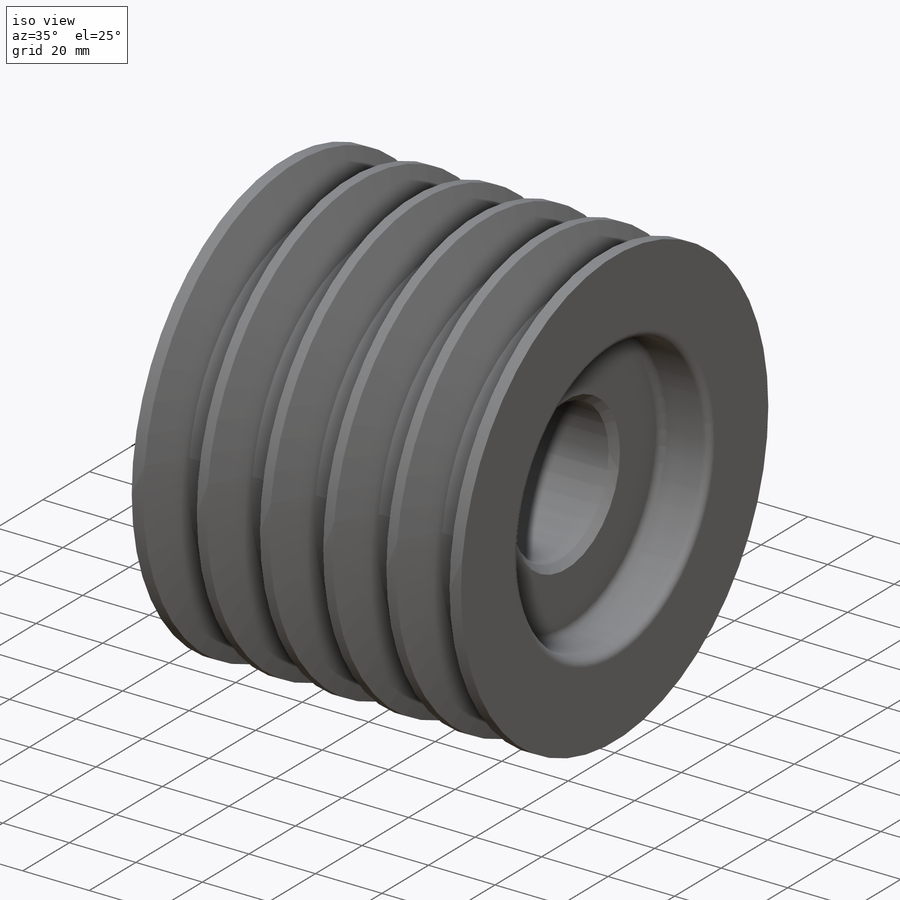
[diagram: iso view]
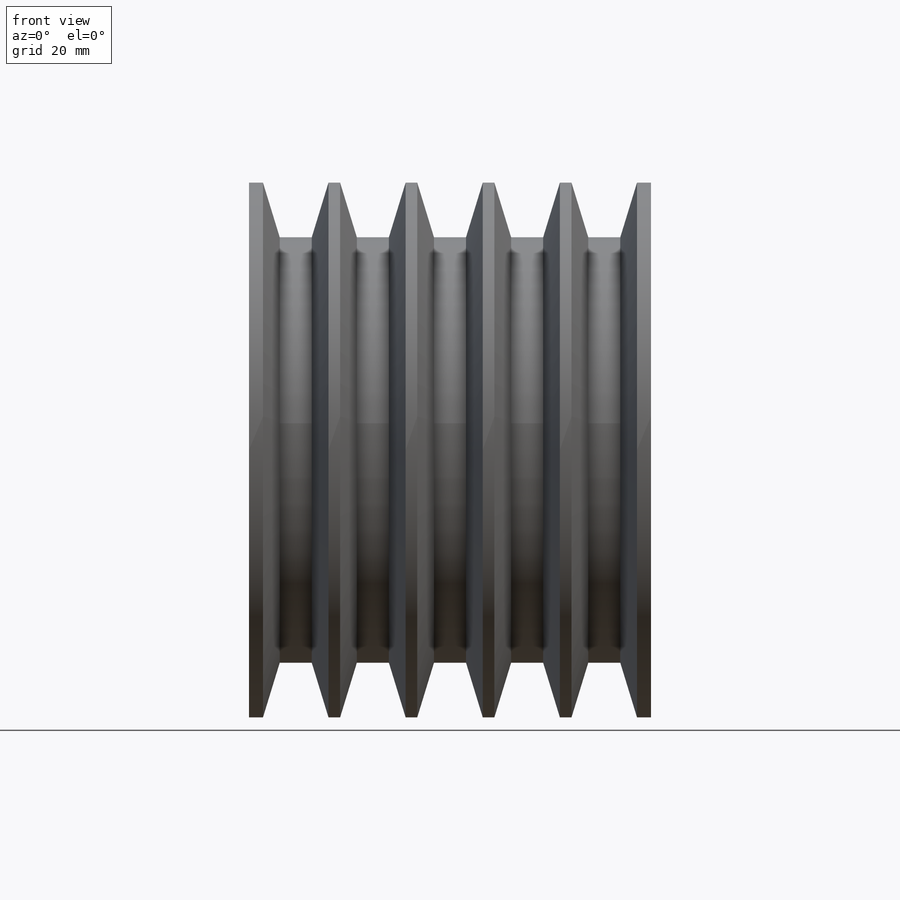
[diagram: front view]
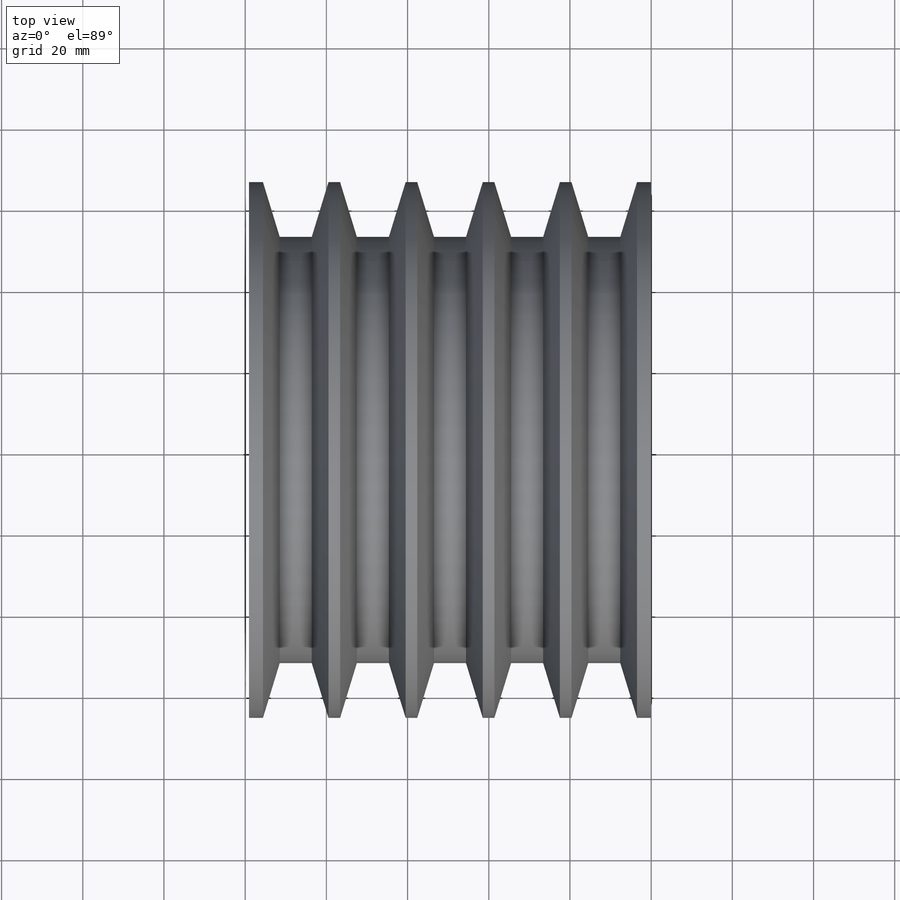
[diagram: top view]
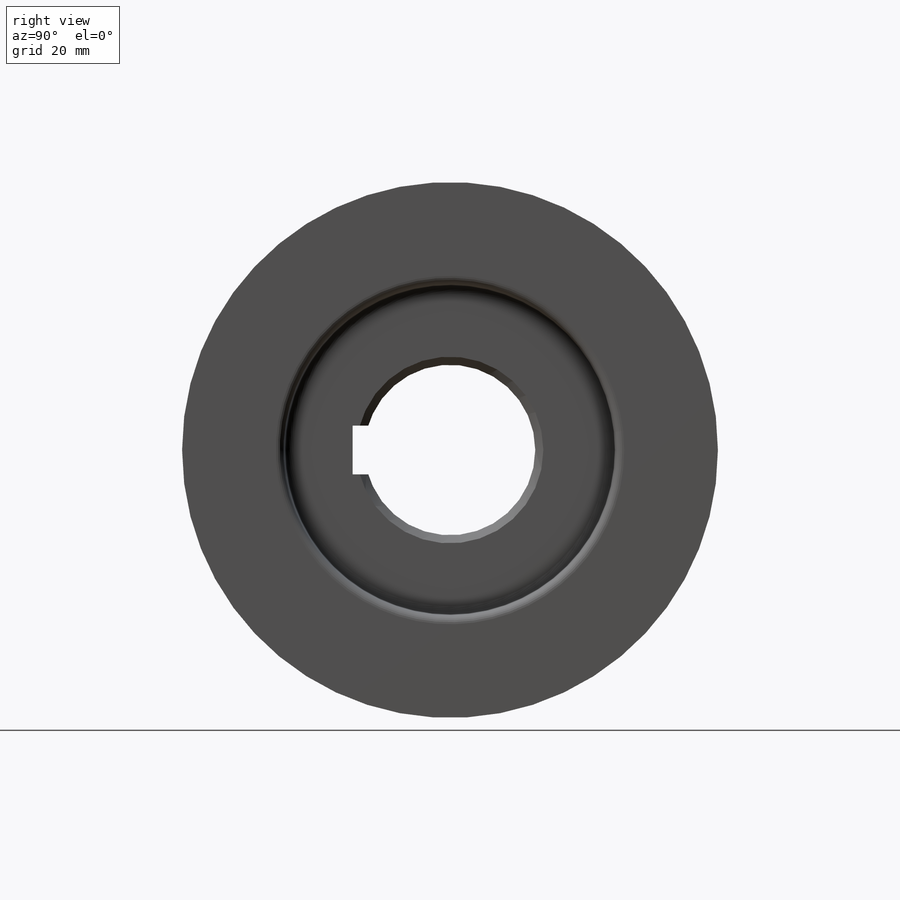
[diagram: right view]
SOLIDWORKS PART (.sldprt)
format: sldprt  version: not decoded by parser v0  size: 359,424 bytes
history: native  units: mm
features: sketch x6, plane x5, cut_extrude x3, pattern_linear x3, material x1, revolve x1, mirror x1, fillet x1, sweep x1, chamfer x1 (+13 scaffold rows collapsed)
feature tree (36):
  scaffold x13  (default folders/planes/origin — collapsed)
  material  "材质 <未指定>"
  plane  "前视基准面"
  plane  "上视基准面"
  plane  "右视基准面"
  sketch  "草图1"  dims[c1.D1=66.0mm c1.D2=66.0mm c1.D3=99.0mm c1.D4=40.0mm c1.D5=40.0mm c2.D1=40.0mm c2.D3=35.0mm c2.D5=35.0mm c2.D6=45.5mm c2.D7=45.5mm c3.D1=99.0mm c3.D2=66.0mm]
  revolve  "旋转1"  Angle=360deg
  sketch  "草图2"  dims[D1=~26.176789mm]
  cut_extrude  "切除-拉伸1"  Depth=14.5mm
  plane  "基准面1"
  mirror  "镜向1"
  fillet  "圆角1"  Radius=2mm
  sketch  "草图3"  dims[c1.D1=52.5mm c1.D2=11.5mm c1.D3=5.0mm c1.D4=13.5mm c2.D4=17.0deg c2.D5=~22.534426mm c3.D5=17.0deg c3.D6=62.5mm c3.D7=7.0mm c3.D8=~5.557307mm c3.D3=7.0mm c4.D8=14.0mm]
  plane  "基准面2"
  sketch  "草图4"
  sweep  "切除-扫描1"
  pattern_linear  "阵列(线性)1"  Count1=3 Count2=1 Spacing1=19mm Spacing2=50mm
  pattern_linear  "阵列(线性)2"  Count1=2 Count2=1 Spacing1=57mm Spacing2=50mm
  pattern_linear  "阵列(线性)3"  Count1=2 Count2=1 Spacing1=76mm Spacing2=50mm
  sketch  "草图5"  dims[D1=~14.679384mm]
  cut_extrude  "切除-拉伸2"  [1 undecoded]
  chamfer  "倒角1"  Distance=2mm Angle=45deg
  sketch  "草图6"  dims[D1=24.0mm D2=6.0mm D3=6.0mm]
  cut_extrude  "切除-拉伸3"  [1 undecoded]
decode coverage: 12 of 17 modeling features carry decoded parameters
note: ~ marks probable driven/reference dimensions
note: 2 parameter values undecoded
note: suppression state not decoded; provenance and decode notes live in map.json
